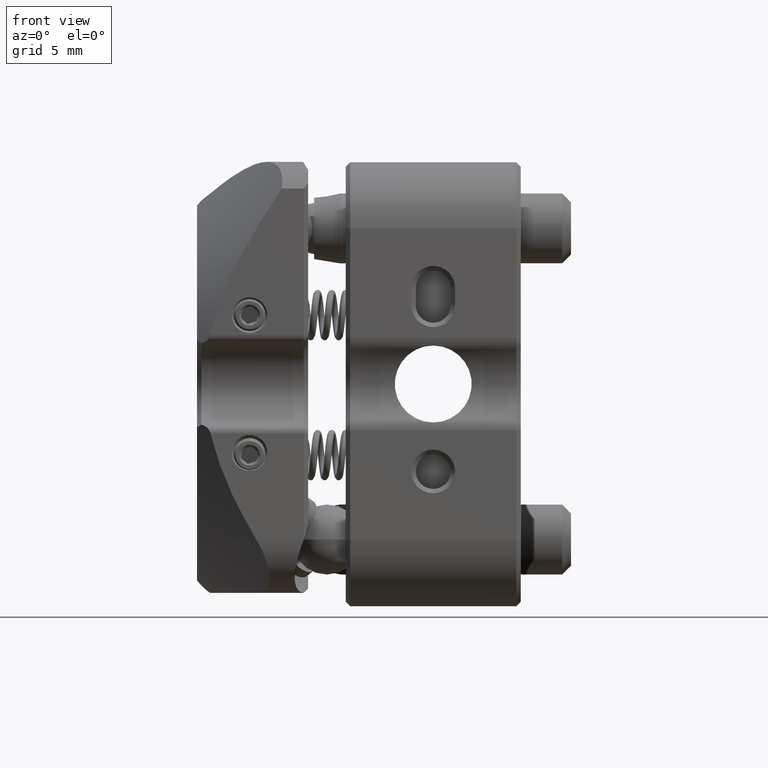
[diagram: clean part render]
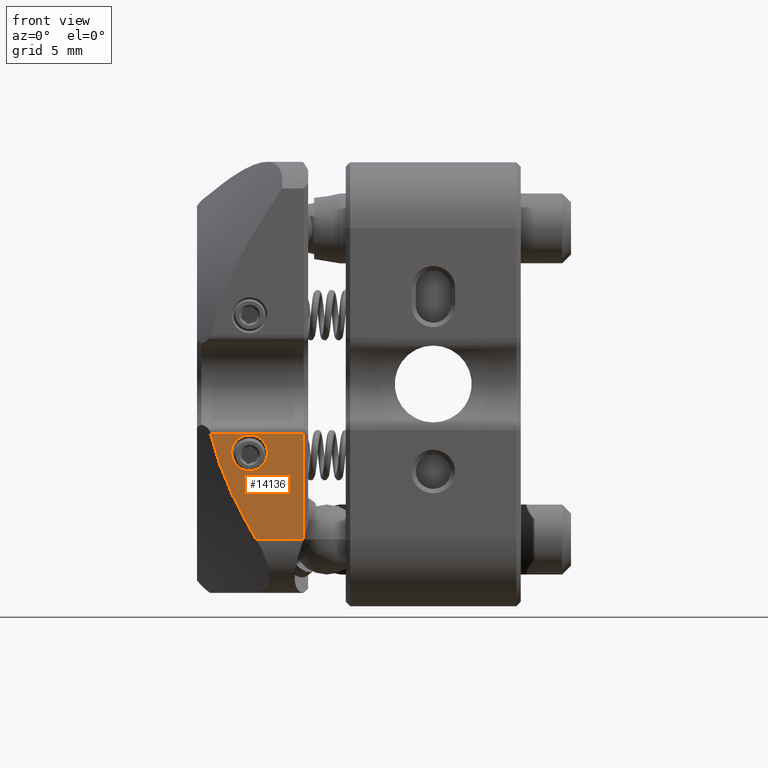
[diagram: same view with one face highlighted and labeled with its STEP entity id]
A machine part, front view. The second image highlights one B-rep face of the part: STEP entity #14136.
In plain terms, the highlighted planar face has unit normal (0, -1, -0).
Its self-contained STEP definition (entity closure, byte-faithful):
#2260 = FACE_OUTER_BOUND ( 'NONE', #18230, .T. ) ;
#2460 = CARTESIAN_POINT ( 'NONE',  ( -7.405181357210858906, -11.93000000000000504, -8.900000000015754864 ) ) ;
#3015 = ORIENTED_EDGE ( 'NONE', *, *, #29242, .T. ) ;
#3257 = CARTESIAN_POINT ( 'NONE',  ( -12.72787529128230588, -11.93000000000000682, -2.828427180055451462 ) ) ;
#5356 = CARTESIAN_POINT ( 'NONE',  ( -10.67658497649106586, -11.93000000000000149, -7.945671867821781476 ) ) ;
#5579 = LINE ( 'NONE', #52580, #6662 ) ;
#6561 = DIRECTION ( 'NONE',  ( 0.000000000000000000, -7.249497813621925042E-16, 1.000000000000000000 ) ) ;
#6662 = VECTOR ( 'NONE', #6561, 1000.000000000000000 ) ;
#6743 = CARTESIAN_POINT ( 'NONE',  ( -9.473311319077543757, -11.92999999993748972, -3.935000000000026255 ) ) ;
#7627 = CARTESIAN_POINT ( 'NONE',  ( -7.400619954940299117, -11.93000000000000682, -8.887639327158321834 ) ) ;
#8966 = CARTESIAN_POINT ( 'NONE',  ( -10.49831131910446480, -11.92999999993748972, -3.935000000000026255 ) ) ;
#9106 = EDGE_CURVE ( 'NONE', #59529, #12157, #53031, .T. ) ;
#10780 = EDGE_CURVE ( 'NONE', #44839, #48934, #21981, .T. ) ;
#12157 = VERTEX_POINT ( 'NONE', #3257 ) ;
#12226 = DIRECTION ( 'NONE',  ( 1.000000000000000000, -0.000000000000000000, -0.000000000000000000 ) ) ;
#12991 = DIRECTION ( 'NONE',  ( 0.000000000000000000, -1.000000000000000000, -7.249497813621925042E-16 ) ) ;
#12995 = CARTESIAN_POINT ( 'NONE',  ( -7.402909990655840211, -11.93000000000302485, -8.893816250369331655 ) ) ;
#13510 = ORIENTED_EDGE ( 'NONE', *, *, #55936, .T. ) ;
#14136 = ADVANCED_FACE ( 'NONE', ( #2260, #64043 ), #43920, .T. ) ;
#15432 = CARTESIAN_POINT ( 'NONE',  ( -10.10624631790333439, -11.93000000000000682, -8.900000000000023448 ) ) ;
#17276 = CARTESIAN_POINT ( 'NONE',  ( -58.43945512130424902, -11.93000000000000682, -8.900000000000023448 ) ) ;
#18230 = EDGE_LOOP ( 'NONE', ( #64894, #54512, #3015, #13510, #42194 ) ) ;
#21460 = CARTESIAN_POINT ( 'NONE',  ( -10.10624631790333439, -11.93000000000000682, -8.900000000000023448 ) ) ;
#21981 = LINE ( 'NONE', #17276, #42325 ) ;
#23832 = ORIENTED_EDGE ( 'NONE', *, *, #55692, .T. ) ;
#25083 = DIRECTION ( 'NONE',  ( 1.000000000000000000, 0.000000000000000000, 0.000000000000000000 ) ) ;
#26174 = CARTESIAN_POINT ( 'NONE',  ( -12.72787529128230588, -11.93000000000000682, -2.828427180055451462 ) ) ;
#27046 = AXIS2_PLACEMENT_3D ( 'NONE', #8966, #29464, #25083 ) ;
#27117 = DIRECTION ( 'NONE',  ( 0.000000000000000000, -7.249497813621925042E-16, 1.000000000000000000 ) ) ;
#29242 = EDGE_CURVE ( 'NONE', #48934, #40724, #32622, .T. ) ;
#29464 = DIRECTION ( 'NONE',  ( -0.000000000000000000, 1.000000000000000000, 8.016670766440418424E-16 ) ) ;
#29491 = B_SPLINE_CURVE_WITH_KNOTS ( 'NONE', 3,
 ( #15432, #5356, #52021, #35938, #46341, #26174 ),
 .UNSPECIFIED., .F., .F.,
 ( 4, 2, 4 ),
 ( 2.453269466693398698E-18, 0.003306695262776503368, 0.006613390525553004134 ),
 .UNSPECIFIED. ) ;
#30527 = VECTOR ( 'NONE', #37945, 1000.000000000000000 ) ;
#32261 = CARTESIAN_POINT ( 'NONE',  ( -7.398311319103042294, -11.93000000000001215, -2.828427124746211607 ) ) ;
#32573 = AXIS2_PLACEMENT_3D ( 'NONE', #53975, #12991, #27117 ) ;
#32622 = B_SPLINE_CURVE_WITH_KNOTS ( 'NONE', 3,
 ( #32830, #12995, #7627, #45173 ),
 .UNSPECIFIED., .F., .F.,
 ( 4, 4 ),
 ( 3.576224061345498009E-18, 1.976311694677715611E-05 ),
 .UNSPECIFIED. ) ;
#32830 = CARTESIAN_POINT ( 'NONE',  ( -7.405181357210858906, -11.93000000000000504, -8.900000000015754864 ) ) ;
#35938 = CARTESIAN_POINT ( 'NONE',  ( -12.10088320237280080, -11.93000000000000860, -4.958886343349663051 ) ) ;
#37945 = DIRECTION ( 'NONE',  ( -1.000000000000000000, 0.000000000000000000, 0.000000000000000000 ) ) ;
#40724 = VERTEX_POINT ( 'NONE', #51753 ) ;
#42194 = ORIENTED_EDGE ( 'NONE', *, *, #9106, .T. ) ;
#42325 = VECTOR ( 'NONE', #12226, 1000.000000000000000 ) ;
#43318 = CARTESIAN_POINT ( 'NONE',  ( -58.43945512130424902, -11.93000000000001215, -2.828427124746211163 ) ) ;
#43920 = PLANE ( 'NONE',  #32573 ) ;
#44839 = VERTEX_POINT ( 'NONE', #21460 ) ;
#45173 = CARTESIAN_POINT ( 'NONE',  ( -7.398311458194793744, -11.92999999999929273, -8.881468918801521895 ) ) ;
#45983 = EDGE_LOOP ( 'NONE', ( #23832 ) ) ;
#46341 = CARTESIAN_POINT ( 'NONE',  ( -12.47618078121151797, -11.93000000000001037, -3.920341919445364365 ) ) ;
#48934 = VERTEX_POINT ( 'NONE', #2460 ) ;
#51753 = CARTESIAN_POINT ( 'NONE',  ( -7.398311458194793744, -11.92999999999929273, -8.881468918801521895 ) ) ;
#52021 = CARTESIAN_POINT ( 'NONE',  ( -11.20131792991204911, -11.93000000000000860, -6.971651764210457181 ) ) ;
#52436 = VERTEX_POINT ( 'NONE', #6743 ) ;
#52580 = CARTESIAN_POINT ( 'NONE',  ( -7.398311319101615879, -11.93000000000002103, 11.17333090024199294 ) ) ;
#53031 = LINE ( 'NONE', #43318, #30527 ) ;
#53975 = CARTESIAN_POINT ( 'NONE',  ( -58.43945512130424902, -11.93000000000002103, 11.17333090024199294 ) ) ;
#54512 = ORIENTED_EDGE ( 'NONE', *, *, #10780, .T. ) ;
#55692 = EDGE_CURVE ( 'NONE', #52436, #52436, #64593, .T. ) ;
#55936 = EDGE_CURVE ( 'NONE', #40724, #59529, #5579, .T. ) ;
#57724 = EDGE_CURVE ( 'NONE', #44839, #12157, #29491, .T. ) ;
#59529 = VERTEX_POINT ( 'NONE', #32261 ) ;
#64043 = FACE_BOUND ( 'NONE', #45983, .T. ) ;
#64593 = CIRCLE ( 'NONE', #27046, 1.025000000026921043 ) ;
#64894 = ORIENTED_EDGE ( 'NONE', *, *, #57724, .F. ) ;